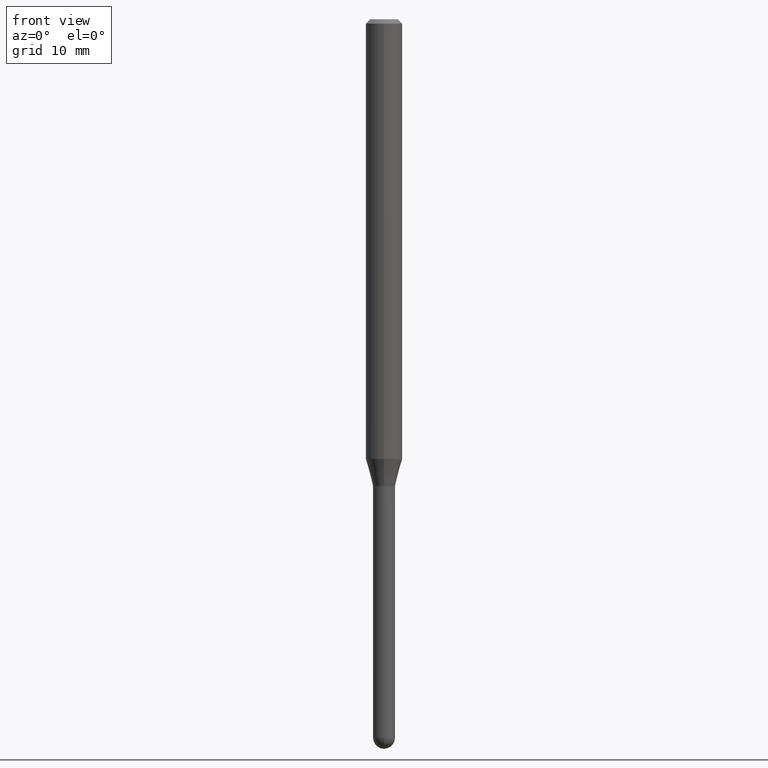
[diagram: clean part render]
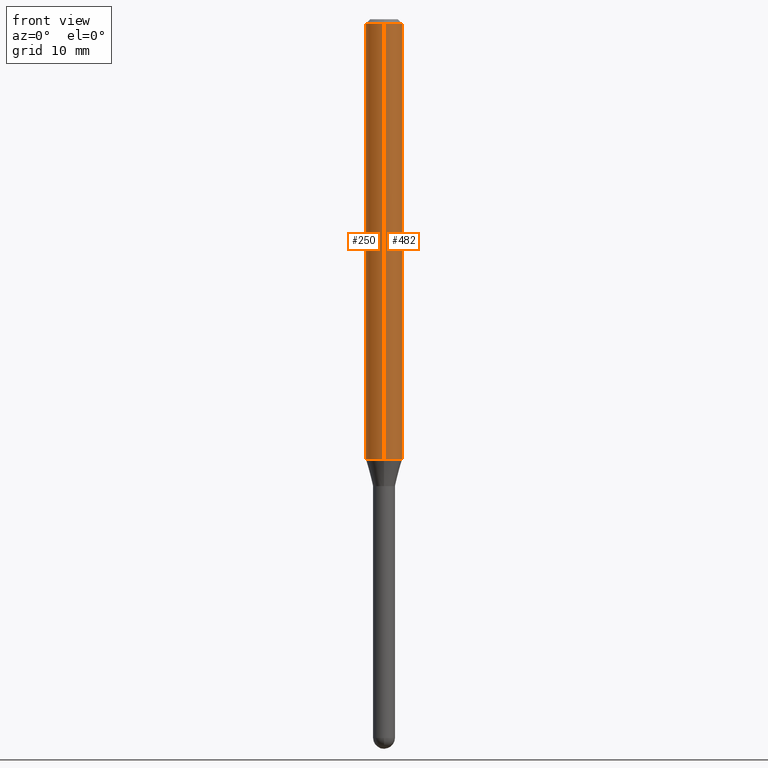
[diagram: same view with one multi-face feature highlighted, each face labeled with its STEP entity id]
A machine part, front view. The highlighted faces form ONE feature: a constant-radius fillet chain: 2 tangent blend faces with common blend radius 1.5875 mm. The faces share edges in the B-rep.
Their STEP definitions:
[1] entity #250 (Cylinder):
#10 = CARTESIAN_POINT ( 'NONE',  ( 4.440892098500625669E-16, 0.06250000000000000000, -2.182193509995803137E-16 ) ) ;
#37 = CARTESIAN_POINT ( 'NONE',  ( 3.684554993056453999E-29, -5.260653103539211271E-15, -1.506698729810781012 ) ) ;
#48 = VERTEX_POINT ( 'NONE', #439 ) ;
#50 = LINE ( 'NONE', #10, #88 ) ;
#54 = DIRECTION ( 'NONE',  ( -2.445449060356730759E-29, 3.491509615993285413E-15, 1.000000000000000000 ) ) ;
#59 = VERTEX_POINT ( 'NONE', #89 ) ;
#70 = ORIENTED_EDGE ( 'NONE', *, *, #416, .T. ) ;
#76 = CIRCLE ( 'NONE', #478, 0.06250000000000000000 ) ;
#88 = VECTOR ( 'NONE', #125, 39.37007874015748143 ) ;
#89 = CARTESIAN_POINT ( 'NONE',  ( -4.364351673553912750E-16, -0.06250000000000005551, -0.01499999999999979128 ) ) ;
#90 = CYLINDRICAL_SURFACE ( 'NONE', #103, 0.06250000000000000000 ) ;
#93 = FACE_OUTER_BOUND ( 'NONE', #265, .T. ) ;
#103 = AXIS2_PLACEMENT_3D ( 'NONE', #132, #251, #406 ) ;
#121 = ORIENTED_EDGE ( 'NONE', *, *, #376, .T. ) ;
#125 = DIRECTION ( 'NONE',  ( -2.445449060356731039E-29, 3.491509615993285413E-15, 1.000000000000000000 ) ) ;
#132 = CARTESIAN_POINT ( 'NONE',  ( 0.000000000000000000, 0.000000000000000000, 0.000000000000000000 ) ) ;
#134 = CARTESIAN_POINT ( 'NONE',  ( 3.668173590535098836E-31, -5.237264423989931719E-17, -0.01500000000000000812 ) ) ;
#155 = DIRECTION ( 'NONE',  ( -2.445449060356730759E-29, 3.491509615993285413E-15, 1.000000000000000000 ) ) ;
#170 = CARTESIAN_POINT ( 'NONE',  ( 4.440892098500991010E-16, 0.06249999999999470562, -1.506698729810781234 ) ) ;
#171 = EDGE_CURVE ( 'NONE', #182, #48, #50, .T. ) ;
#182 = VERTEX_POINT ( 'NONE', #170 ) ;
#189 = VERTEX_POINT ( 'NONE', #327 ) ;
#190 = AXIS2_PLACEMENT_3D ( 'NONE', #37, #155, #195 ) ;
#195 = DIRECTION ( 'NONE',  ( -6.982962677686265922E-15, -1.000000000000000000, 4.370956789862821150E-15 ) ) ;
#250 = ADVANCED_FACE ( 'NONE', ( #93 ), #90, .T. ) ;
#251 = DIRECTION ( 'NONE',  ( -2.445449060356730759E-29, 3.491509615993285413E-15, 1.000000000000000000 ) ) ;
#265 = EDGE_LOOP ( 'NONE', ( #498, #121, #70, #480 ) ) ;
#308 = CARTESIAN_POINT ( 'NONE',  ( -4.364351673553916201E-16, -0.06250000000000000000, 2.182193509995803137E-16 ) ) ;
#327 = CARTESIAN_POINT ( 'NONE',  ( -4.364351673553550860E-16, -0.06250000000000530131, -1.506698729810780790 ) ) ;
#332 = CIRCLE ( 'NONE', #190, 0.06250000000000000000 ) ;
#341 = VECTOR ( 'NONE', #479, 39.37007874015748143 ) ;
#350 = LINE ( 'NONE', #308, #341 ) ;
#376 = EDGE_CURVE ( 'NONE', #182, #189, #332, .T. ) ;
#406 = DIRECTION ( 'NONE',  ( -6.982962677686265922E-15, -1.000000000000000000, 3.491509615993285019E-15 ) ) ;
#416 = EDGE_CURVE ( 'NONE', #189, #59, #350, .T. ) ;
#439 = CARTESIAN_POINT ( 'NONE',  ( 4.440892098500996926E-16, 0.06249999999999995837, -0.01500000000000022669 ) ) ;
#447 = EDGE_CURVE ( 'NONE', #48, #59, #76, .T. ) ;
#478 = AXIS2_PLACEMENT_3D ( 'NONE', #134, #54, #483 ) ;
#479 = DIRECTION ( 'NONE',  ( -2.445449060356731039E-29, 3.491509615993285413E-15, 1.000000000000000000 ) ) ;
#480 = ORIENTED_EDGE ( 'NONE', *, *, #447, .F. ) ;
#483 = DIRECTION ( 'NONE',  ( -6.982962677686265922E-15, -1.000000000000000000, 3.483106191921935554E-15 ) ) ;
#498 = ORIENTED_EDGE ( 'NONE', *, *, #171, .F. ) ;
[2] entity #482 (Cylinder):
#10 = CARTESIAN_POINT ( 'NONE',  ( 4.440892098500625669E-16, 0.06250000000000000000, -2.182193509995803137E-16 ) ) ;
#14 = EDGE_CURVE ( 'NONE', #59, #48, #174, .T. ) ;
#48 = VERTEX_POINT ( 'NONE', #439 ) ;
#50 = LINE ( 'NONE', #10, #88 ) ;
#59 = VERTEX_POINT ( 'NONE', #89 ) ;
#79 = ORIENTED_EDGE ( 'NONE', *, *, #416, .F. ) ;
#88 = VECTOR ( 'NONE', #125, 39.37007874015748143 ) ;
#89 = CARTESIAN_POINT ( 'NONE',  ( -4.364351673553912750E-16, -0.06250000000000005551, -0.01499999999999979128 ) ) ;
#125 = DIRECTION ( 'NONE',  ( -2.445449060356731039E-29, 3.491509615993285413E-15, 1.000000000000000000 ) ) ;
#135 = AXIS2_PLACEMENT_3D ( 'NONE', #243, #187, #269 ) ;
#170 = CARTESIAN_POINT ( 'NONE',  ( 4.440892098500991010E-16, 0.06249999999999470562, -1.506698729810781234 ) ) ;
#171 = EDGE_CURVE ( 'NONE', #182, #48, #50, .T. ) ;
#172 = FACE_OUTER_BOUND ( 'NONE', #280, .T. ) ;
#174 = CIRCLE ( 'NONE', #360, 0.06250000000000000000 ) ;
#182 = VERTEX_POINT ( 'NONE', #170 ) ;
#187 = DIRECTION ( 'NONE',  ( -2.445449060356730759E-29, 3.491509615993285413E-15, 1.000000000000000000 ) ) ;
#189 = VERTEX_POINT ( 'NONE', #327 ) ;
#214 = ORIENTED_EDGE ( 'NONE', *, *, #356, .T. ) ;
#216 = CYLINDRICAL_SURFACE ( 'NONE', #471, 0.06250000000000000000 ) ;
#243 = CARTESIAN_POINT ( 'NONE',  ( 3.684554993056453999E-29, -5.260653103539211271E-15, -1.506698729810781012 ) ) ;
#246 = CARTESIAN_POINT ( 'NONE',  ( 3.668173590535098836E-31, -5.237264423989931719E-17, -0.01500000000000000812 ) ) ;
#254 = CIRCLE ( 'NONE', #135, 0.06250000000000000000 ) ;
#260 = CARTESIAN_POINT ( 'NONE',  ( 0.000000000000000000, 0.000000000000000000, 0.000000000000000000 ) ) ;
#269 = DIRECTION ( 'NONE',  ( -6.982962677686265922E-15, -1.000000000000000000, 4.370956789862821150E-15 ) ) ;
#280 = EDGE_LOOP ( 'NONE', ( #214, #492, #296, #79 ) ) ;
#283 = DIRECTION ( 'NONE',  ( -2.445449060356730759E-29, 3.491509615993285413E-15, 1.000000000000000000 ) ) ;
#296 = ORIENTED_EDGE ( 'NONE', *, *, #14, .F. ) ;
#308 = CARTESIAN_POINT ( 'NONE',  ( -4.364351673553916201E-16, -0.06250000000000000000, 2.182193509995803137E-16 ) ) ;
#324 = DIRECTION ( 'NONE',  ( -6.982962677686265922E-15, -1.000000000000000000, 3.491509615993285019E-15 ) ) ;
#326 = DIRECTION ( 'NONE',  ( -2.445449060356730759E-29, 3.491509615993285413E-15, 1.000000000000000000 ) ) ;
#327 = CARTESIAN_POINT ( 'NONE',  ( -4.364351673553550860E-16, -0.06250000000000530131, -1.506698729810780790 ) ) ;
#341 = VECTOR ( 'NONE', #479, 39.37007874015748143 ) ;
#350 = LINE ( 'NONE', #308, #341 ) ;
#356 = EDGE_CURVE ( 'NONE', #189, #182, #254, .T. ) ;
#359 = DIRECTION ( 'NONE',  ( -6.982962677686265922E-15, -1.000000000000000000, 3.483106191921935554E-15 ) ) ;
#360 = AXIS2_PLACEMENT_3D ( 'NONE', #246, #283, #359 ) ;
#416 = EDGE_CURVE ( 'NONE', #189, #59, #350, .T. ) ;
#439 = CARTESIAN_POINT ( 'NONE',  ( 4.440892098500996926E-16, 0.06249999999999995837, -0.01500000000000022669 ) ) ;
#471 = AXIS2_PLACEMENT_3D ( 'NONE', #260, #326, #324 ) ;
#479 = DIRECTION ( 'NONE',  ( -2.445449060356731039E-29, 3.491509615993285413E-15, 1.000000000000000000 ) ) ;
#482 = ADVANCED_FACE ( 'NONE', ( #172 ), #216, .T. ) ;
#492 = ORIENTED_EDGE ( 'NONE', *, *, #171, .T. ) ;